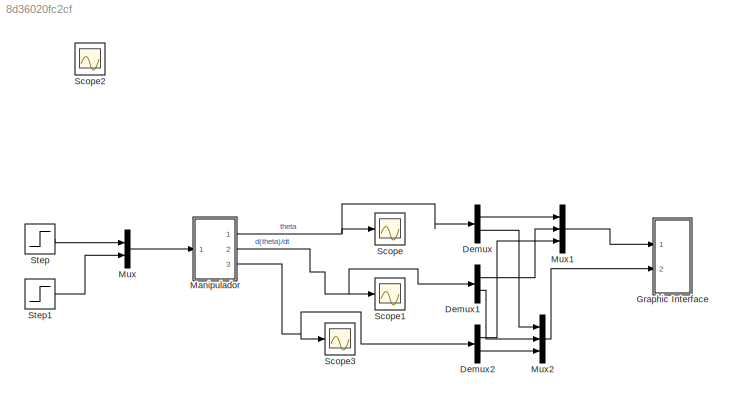
MODEL slx_8d36020fc2cf
KIND model
CONFIG AbsTol = auto
CONFIG FixedStep = 0.01
CONFIG MaxStep = 0.01
CONFIG MinStep = auto
CONFIG RelTol = 1e-3
CONFIG SampleTimeConstraint = Unconstrained
CONFIG Solver = ode4
CONFIG SolverMode = Auto
CONFIG SolverName = ode4
CONFIG StartTime = 0.0
CONFIG StopTime = 20
BLOCK [Demux] Demux
  DisplayOption = bar
  Outputs = 2
  Ports = [1, 2]
BLOCK [Demux] Demux1
  DisplayOption = bar
  Outputs = 2
  Ports = [1, 2]
BLOCK [Demux] Demux2
  DisplayOption = bar
  Outputs = 2
  Ports = [1, 2]
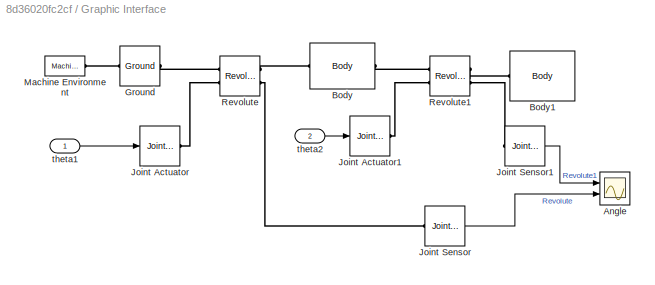
BLOCK [SubSystem] Graphic Interface
  Ports = [2]
  RequestExecContextInheritance = off
BLOCK [Scope] Graphic Interface/Angle
  DataFormat = StructureWithTime
  Floating = off
  NumInputPorts = 2
  Ports = [2]
  SampleTime = 0
  TimeRange = 10
  YMax = 0~1
  YMin = -120~-1
BLOCK [Reference] Graphic Interface/Body  REF=mblibv1/Bodies/Body
  AttachedToCS = CG
  BodyColor = [1 0 0]
  BodyColorSelMode = MACHINE_DEFAULT
  CG = Left$CG$[0.3 0 0]$WORLD$WORLD$m$[0 0 pi/4]$Euler X-Y-Z$rad$WORLD$false$none
  CGPos = [0.3 0 0]
  CGRot = [0 0 pi/4]
  CS0Pos = []
  CS0Rot = []
  CS10Pos = []
  CS10Rot = []
  CS11Pos = []
  CS11Rot = []
  CS12Pos = []
  CS12Rot = []
  CS13Pos = []
  CS13Rot = []
  CS14Pos = []
  CS14Rot = []
  CS15Pos = []
  CS15Rot = []
  CS16Pos = []
  CS16Rot = []
  CS17Pos = []
  CS17Rot = []
  CS18Pos = []
  CS18Rot = []
  CS19Pos = []
  CS19Rot = []
  CS1Pos = [0 0 0]
  CS1Rot = [0 0 0]
  CS20Pos = []
  CS20Rot = []
  CS2Pos = [0.6 0 0]
  CS2Rot = [0 0 0]
  CS3Pos = []
  CS3Rot = []
  CS4Pos = []
  CS4Rot = []
  CS5Pos = []
  CS5Rot = []
  CS6Pos = []
  CS6Rot = []
  CS7Pos = []
  CS7Rot = []
  CS8Pos = []
  CS8Rot = []
  CS9Pos = []
  CS9Rot = []
  ClassName = Body
  Density = 1
  DensityUnits = kg/m^3
  DensityUse = false
  DialogClass = MechanicalBodyBlock
  GraphicsMode = MACHINE_DEFAULT
  Inertia = [0.565529 0 0; 0 0.00085 0; 0 0 0.565529]
  InertiaUnits = kg*m^2
  LConnTagsString = CS1
  Mass = 2.2
  MassUnits = kg
  Ports = [0, 0, 0, 0, 0, 1, 1]
  RConnTagsString = CS2
  Shape = Cylinder
  ShapeDims = [1 1]
  ShapeUnits = m
  ShapeUse = false
  SourceBlock = mblibv1/Bodies/Body
  SourceType = Body
  UpdateFromCAD = off
  WorkingFrames = Left$CS1$[0 0 0]$WORLD$WORLD$m$[0 0 0]$Euler X-Y-Z$deg$WORLD$true$none#Right$CS2$[0.6 0 0]$WORLD$WORLD$m$[0 0 0]$Euler X-Y-Z$deg$WORLD$true$none
BLOCK [Reference] Graphic Interface/Body1  REF=mblibv1/Bodies/Body
  AttachedToCS = CG
  BodyColor = [1 0 0]
  BodyColorSelMode = MACHINE_DEFAULT
  CG = Left$CG$[0.9 0 0]$WORLD$WORLD$m$[0 0 pi/4]$Euler X-Y-Z$rad$WORLD$false$none
  CGPos = [0.9 0 0]
  CGRot = [0 0 pi/4]
  CS0Pos = []
  CS0Rot = []
  CS10Pos = []
  CS10Rot = []
  CS11Pos = []
  CS11Rot = []
  CS12Pos = []
  CS12Rot = []
  CS13Pos = []
  CS13Rot = []
  CS14Pos = []
  CS14Rot = []
  CS15Pos = []
  CS15Rot = []
  CS16Pos = []
  CS16Rot = []
  CS17Pos = []
  CS17Rot = []
  CS18Pos = []
  CS18Rot = []
  CS19Pos = []
  CS19Rot = []
  CS1Pos = [0.6 0 0]
  CS1Rot = [0 0 0]
  CS20Pos = []
  CS20Rot = []
  CS2Pos = [1.2 0 0]
  CS2Rot = [0 0 0]
  CS3Pos = []
  CS3Rot = []
  CS4Pos = []
  CS4Rot = []
  CS5Pos = []
  CS5Rot = []
  CS6Pos = []
  CS6Rot = []
  CS7Pos = []
  CS7Rot = []
  CS8Pos = []
  CS8Rot = []
  CS9Pos = []
  CS9Rot = []
  ClassName = Body
  Density = 1
  DensityUnits = kg/m^3
  DensityUse = false
  DialogClass = MechanicalBodyBlock
  GraphicsMode = MACHINE_DEFAULT
  Inertia = [0.565529 0 0; 0 0.00085 0; 0 0 0.565529]
  InertiaUnits = kg*m^2
  LConnTagsString = CS1
  Mass = 2.2
  MassUnits = kg
  Ports = [0, 0, 0, 0, 0, 1]
  Shape = Cylinder
  ShapeDims = [1 1]
  ShapeUnits = m
  ShapeUse = false
  SourceBlock = mblibv1/Bodies/Body
  SourceType = Body
  UpdateFromCAD = off
  WorkingFrames = Left$CS1$[0.6 0 0]$WORLD$WORLD$m$[0 0 0]$Euler X-Y-Z$deg$WORLD$true$none#Right$CS2$[1.2 0 0]$WORLD$WORLD$m$[0 0 0]$Euler X-Y-Z$deg$WORLD$false$none
BLOCK [Reference] Graphic Interface/Ground  REF=mblibv1/Bodies/Ground
  ClassName = Ground
  CoordPosition = [0 0 0]
  CoordPositionUnits = m
  DialogClass = GroundBlock
  LeftPortType = env
  MachineId = [1 0]
  ParameterChecksum = [2665323517, 9994337, 2049993874, 3484898119]
  PhysicalDomain = Mechanical
  Ports = [0, 0, 0, 0, 0, 1, 1]
  RightPortType = workingframe
  ShowEnvPort = on
  SourceBlock = mblibv1/Bodies/Ground
  SourceType = Ground
  StateVectorMgrId = 0
  TopologyChecksum = [3214554247, 653845476, 1212418715, 3884345933]
  UpdateFromCAD = off
  UserDataPersistent = on
BLOCK [Reference] Graphic Interface/Joint Actuator  REF=mblibv1/Sensors & 
Actuators/Joint Actuator
  AccelerationUnits = m/s^2
  ActiveIO = on
  ActuationStyle = Motion
  AngleUnits = rad
  ArcAccelerationUnits = rad/s^2
  ArcVelocityUnits = rad/s
  ClassName = JointActuator
  CoordPositionUnits = m
  DialogClass = MechanicalActuatorBlock
  ForceUnits = N
  PhysicalDomain = Mechanical
  PortType = blob
  Ports = [1, 0, 0, 0, 0, 0, 1]
  Primitive = R1
  ReferenceFrame = Absolute (INERTIAL)
  SourceBlock = mblibv1/Sensors & \nActuators/Joint Actuator
  SourceType = Joint Actuator
  TorqueUnits = N*m
  UpdateFromCAD = off
  VelocityUnits = m/s
  Width = 3
BLOCK [Reference] Graphic Interface/Joint Actuator1  REF=mblibv1/Sensors & 
Actuators/Joint Actuator
  AccelerationUnits = m/s^2
  ActiveIO = on
  ActuationStyle = Motion
  AngleUnits = rad
  ArcAccelerationUnits = rad/s^2
  ArcVelocityUnits = rad/s
  ClassName = JointActuator
  CoordPositionUnits = m
  DialogClass = MechanicalActuatorBlock
  ForceUnits = N
  PhysicalDomain = Mechanical
  PortType = blob
  Ports = [1, 0, 0, 0, 0, 0, 1]
  Primitive = R1
  ReferenceFrame = Absolute (INERTIAL)
  SourceBlock = mblibv1/Sensors & \nActuators/Joint Actuator
  SourceType = Joint Actuator
  TorqueUnits = N*m
  UpdateFromCAD = off
  VelocityUnits = m/s
  Width = 3
BLOCK [Reference] Graphic Interface/Joint Sensor  REF=mblibv1/Sensors & 
Actuators/Joint Sensor
  Acceleration = off
  AccelerationUnits = m/s^2
  ActiveIO = on
  Angle = on
  AngleUnits = rad
  ArcAcceleration = off
  ArcAccelerationUnits = deg/s^2
  ArcVelocity = off
  ArcVelocityUnits = deg/s
  ClassName = JointSensor
  CoordPosition = on
  CoordPositionUnits = m
  DialogClass = MechanicalSensorBlock
  Force = off
  ForceUnits = N
  Muxed = on
  OutputVector = [1]
  PhysicalDomain = Mechanical
  PortType = blob
  Ports = [0, 1, 0, 0, 0, 1]
  Pose = on
  Primitive = R1
  Quaternion = on
  QuaternionDDT = off
  QuaternionDT = off
  QuaternionUnits = off
  ReactionForce = off
  ReactionForceUnits = N
  ReactionMoment = off
  ReactionMomentUnits = N*m
  ReactionReferenceFrame = Absolute (World)
  ReactionSensedSide = Base
  ReferenceFrame = Absolute (INERTIAL)
  SourceBlock = mblibv1/Sensors & \nActuators/Joint Sensor
  SourceType = Joint Sensor
  Torque = off
  TorqueUnits = N*m
  UpdateFromCAD = off
  Velocity = off
  VelocityUnits = m/s
  Width = 1
BLOCK [Reference] Graphic Interface/Joint Sensor1  REF=mblibv1/Sensors & 
Actuators/Joint Sensor
  Acceleration = off
  AccelerationUnits = m/s^2
  ActiveIO = on
  Angle = on
  AngleUnits = rad
  ArcAcceleration = off
  ArcAccelerationUnits = deg/s^2
  ArcVelocity = off
  ArcVelocityUnits = deg/s
  ClassName = JointSensor
  CoordPosition = on
  CoordPositionUnits = m
  DialogClass = MechanicalSensorBlock
  Force = off
  ForceUnits = N
  Muxed = on
  OutputVector = [1]
  PhysicalDomain = Mechanical
  PortType = blob
  Ports = [0, 1, 0, 0, 0, 1]
  Pose = on
  Primitive = R1
  Quaternion = on
  QuaternionDDT = off
  QuaternionDT = off
  QuaternionUnits = off
  ReactionForce = off
  ReactionForceUnits = N
  ReactionMoment = off
  ReactionMomentUnits = N*m
  ReactionReferenceFrame = Absolute (World)
  ReactionSensedSide = Base
  ReferenceFrame = Absolute (INERTIAL)
  SourceBlock = mblibv1/Sensors & \nActuators/Joint Sensor
  SourceType = Joint Sensor
  Torque = off
  TorqueUnits = N*m
  UpdateFromCAD = off
  Velocity = off
  VelocityUnits = m/s
  Width = 1
BLOCK [Reference] Graphic Interface/Machine Environment  REF=mblibv1/Bodies/Machine
Environment
  AnalysisType = Forward dynamics
  AngularAssemblyTolerance = 1e-3
  AngularAssemblyToleranceUnits = rad
  BodyColorSelMode = Use model default
  BodyVisualizationType = Use model default body geometries
  ClassName = Environment
  ConstraintAbsTolerance = 1e-4
  ConstraintRelTolerance = 1e-4
  ConstraintSolverType = Stabilizing
  DefaultBodyColor = [1 0 0]
  DialogTemplateClass = MECH.MachineEnvironment
  Dimensionality = 3D Only
  Gravity = [0 -9.81 0]
  GravityAsSignal = off
  GravityUnits = m/s^2
  LinearAssemblyTolerance = 1e-3
  LinearAssemblyToleranceUnits = m
  PerturbationSize = 1e-3
  PhysicalDomain = Mechanical
  PortType = env
  Ports = [0, 0, 0, 0, 0, 0, 1]
  RedundancyAnalysisTolerance = 1e-14
  RedundancyAnalysisToleranceType = Automatically select tolerance
  SourceBlock = mblibv1/Bodies/Machine\nEnvironment
  SourceType = Machine Environment
  StatePerturbationType = Adaptive
  SyncWhenCopied = off
  Tag = Factory ground
  UseRobustSingularityHandling = off
  VisualizeMachine = on
BLOCK [Reference] Graphic Interface/Revolute  REF=mblibv1/Joints/Revolute
  ClassName = Joint
  CutJoint = off
  DialogClass = JointBlock
  LConnTagsString = __newl0|SA1
  MarkAsCut = off
  NumSAPorts = 2
  Ports = [0, 0, 0, 0, 0, 2, 2]
  PrimitiveProps = R1$World$[0 0 1]$revolute
  Primitives = revolute
  R1Axis = [0 0 1]
  RConnTagsString = __newr0|SA1
  SourceBlock = mblibv1/Joints/Revolute
  SourceType = Revolute
  UpdateFromCAD = off
BLOCK [Reference] Graphic Interface/Revolute1  REF=mblibv1/Joints/Revolute
  ClassName = Joint
  CutJoint = off
  DialogClass = JointBlock
  LConnTagsString = __newl0|SA1
  MarkAsCut = off
  NumSAPorts = 2
  Ports = [0, 0, 0, 0, 0, 2, 2]
  PrimitiveProps = R1$WORLD$[0 0 1]$revolute
  Primitives = revolute
  R1Axis = [0 0 1]
  RConnTagsString = __newr0|SA1
  SourceBlock = mblibv1/Joints/Revolute
  SourceType = Revolute
  UpdateFromCAD = off
BLOCK [Inport] Graphic Interface/theta1
  IconDisplay = Port number
BLOCK [Inport] Graphic Interface/theta2
  IconDisplay = Port number
  Port = 2
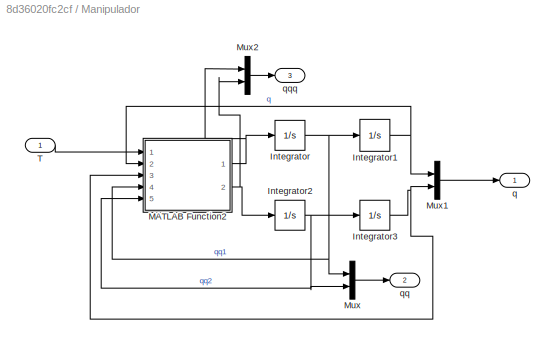
BLOCK [SubSystem] Manipulador
  Ports = [1, 3]
  RequestExecContextInheritance = off
BLOCK [Integrator] Manipulador/Integrator
  Ports = [1, 1]
BLOCK [Integrator] Manipulador/Integrator1
  Ports = [1, 1]
BLOCK [Integrator] Manipulador/Integrator2
  Ports = [1, 1]
BLOCK [Integrator] Manipulador/Integrator3
  InitialCondition = pi/3
  Ports = [1, 1]
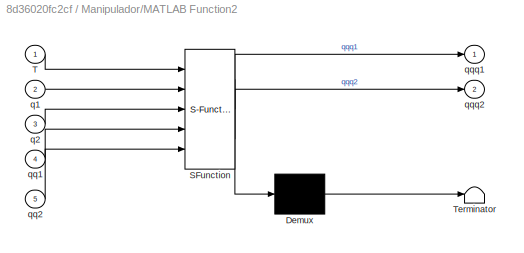
BLOCK [SubSystem] Manipulador/MATLAB Function2
  ErrorFcn = Stateflow.Translate.translate
  PermitHierarchicalResolution = ExplicitOnly
  Ports = [5, 2]
  RequestExecContextInheritance = off
  SFBlockType = MATLAB Function
  TreatAsAtomicUnit = on
BLOCK [Demux] Manipulador/MATLAB Function2/ Demux 
  Outputs = 1
  Ports = [1, 1]
BLOCK [S-Function] Manipulador/MATLAB Function2/ SFunction 
  EnableBusSupport = on
  FunctionName = sf_sfun
  PortCounts = [5 3]
  Ports = [5, 3]
  Tag = Stateflow S-Function manipulador_ma 3
BLOCK [Terminator] Manipulador/MATLAB Function2/ Terminator 
BLOCK [Inport] Manipulador/MATLAB Function2/T
  IconDisplay = Port number
BLOCK [Inport] Manipulador/MATLAB Function2/q1
  IconDisplay = Port number
  Port = 2
BLOCK [Inport] Manipulador/MATLAB Function2/q2
  IconDisplay = Port number
  Port = 3
BLOCK [Inport] Manipulador/MATLAB Function2/qq1
  IconDisplay = Port number
  Port = 4
BLOCK [Inport] Manipulador/MATLAB Function2/qq2
  IconDisplay = Port number
  Port = 5
BLOCK [Outport] Manipulador/MATLAB Function2/qqq1
  IconDisplay = Port number
BLOCK [Outport] Manipulador/MATLAB Function2/qqq2
  IconDisplay = Port number
  Port = 2
BLOCK [Mux] Manipulador/Mux
  DisplayOption = bar
  Inputs = 2
  Ports = [2, 1]
BLOCK [Mux] Manipulador/Mux1
  DisplayOption = bar
  Inputs = 2
  Ports = [2, 1]
BLOCK [Mux] Manipulador/Mux2
  DisplayOption = bar
  Inputs = 2
  Ports = [2, 1]
BLOCK [Inport] Manipulador/T
  IconDisplay = Port number
BLOCK [Outport] Manipulador/q
  IconDisplay = Port number
  PortDimensions = 2
BLOCK [Outport] Manipulador/qq
  IconDisplay = Port number
  Port = 2
BLOCK [Outport] Manipulador/qqq
  IconDisplay = Port number
  Port = 3
BLOCK [Mux] Mux
  DisplayOption = bar
  Inputs = 2
  Ports = [2, 1]
BLOCK [Mux] Mux1
  DisplayOption = bar
  Inputs = 3
  Ports = [3, 1]
BLOCK [Mux] Mux2
  DisplayOption = bar
  Inputs = 3
  Ports = [3, 1]
BLOCK [Scope] Scope
  Floating = off
  LegendLocations = 0.77053     0.78744     0.15072    0.072464
  NumInputPorts = 1
  Ports = [1]
  ShowLegends = on
BLOCK [Scope] Scope1
  Floating = off
  NumInputPorts = 1
  Ports = [1]
  SaveName = ScopeData1
  ShowLegends = on
BLOCK [Scope] Scope2
  DataFormat = StructureWithTime
  Floating = off
  IOType = viewer
  NumInputPorts = 1
  Ports = []
  SampleTime = 0
  SaveName = ScopeData2
BLOCK [Scope] Scope3
  Floating = off
  LegendLocations = 0.70794     0.80898     0.20588    0.076628
  NumInputPorts = 1
  Ports = [1]
  SaveName = ScopeData3
  ShowLegends = on
BLOCK [Step] Step
  After = 0
  SampleTime = 0
  Time = 0
BLOCK [Step] Step1
  After = 0
  SampleTime = 0
  Time = 0
LINE Demux1:1 -> Mux1:2
LINE Demux1:2 -> Mux2:2
LINE Demux2:1 -> Mux1:3
LINE Demux2:2 -> Mux2:3
LINE Demux:1 -> Mux1:1
LINE Demux:2 -> Mux2:1
LINE Graphic Interface/Joint Sensor1:1 -> Graphic Interface/Angle:1
LINE Graphic Interface/Joint Sensor:1 -> Graphic Interface/Angle:2
LINE Graphic Interface/theta1:1 -> Graphic Interface/Joint Actuator:1
LINE Graphic Interface/theta2:1 -> Graphic Interface/Joint Actuator1:1
NET Manipulador/Integrator1:1 -> Manipulador/MATLAB Function2:2, Manipulador/Mux1:1
NET Manipulador/Integrator2:1 -> Manipulador/Integrator3:1, Manipulador/MATLAB Function2:5, Manipulador/Mux:2
NET Manipulador/Integrator3:1 -> Manipulador/MATLAB Function2:3, Manipulador/Mux1:2
NET Manipulador/Integrator:1 -> Manipulador/Integrator1:1, Manipulador/MATLAB Function2:4, Manipulador/Mux:1
NET Manipulador/MATLAB Function2:1 -> Manipulador/Integrator:1, Manipulador/Mux2:1
NET Manipulador/MATLAB Function2:2 -> Manipulador/Integrator2:1, Manipulador/Mux2:2
LINE Manipulador/Mux1:1 -> Manipulador/q:1
LINE Manipulador/Mux2:1 -> Manipulador/qqq:1
LINE Manipulador/Mux:1 -> Manipulador/qq:1
LINE Manipulador/T:1 -> Manipulador/MATLAB Function2:1
NET Manipulador:1 -> Demux:1, Scope:1
NET Manipulador:2 -> Demux1:1, Scope1:1
NET Manipulador:3 -> Demux2:1, Scope3:1
LINE Mux1:1 -> Graphic Interface:1
LINE Mux2:1 -> Graphic Interface:2
LINE Mux:1 -> Manipulador:1
LINE Step1:1 -> Mux:2
LINE Step:1 -> Mux:1
PLINE Graphic Interface/Body1:LConn1 -- Graphic Interface/Revolute1:RConn1
PLINE Graphic Interface/Body:LConn1 -- Graphic Interface/Revolute:RConn1
PLINE Graphic Interface/Body:RConn1 -- Graphic Interface/Revolute1:LConn1
PLINE Graphic Interface/Ground:LConn1 -- Graphic Interface/Machine Environment:RConn1
PLINE Graphic Interface/Ground:RConn1 -- Graphic Interface/Revolute:LConn1
PLINE Graphic Interface/Joint Actuator1:RConn1 -- Graphic Interface/Revolute1:LConn2
PLINE Graphic Interface/Joint Actuator:RConn1 -- Graphic Interface/Revolute:LConn2
PLINE Graphic Interface/Joint Sensor1:LConn1 -- Graphic Interface/Revolute1:RConn2
PLINE Graphic Interface/Joint Sensor:LConn1 -- Graphic Interface/Revolute:RConn2
note: NET lines group one-source signal fan-out (src -> all destinations, sorted); 1:1 wires keep LINE
CHART Manipulador/MATLAB Function2 states=1 transitions=1
  STATE_LABEL 'eML_blk_kernel()'
  STATE_LABEL 'SCRIPT:\nfunction [qqq1, qqq2] = Manip(T, q1, q2, qq1, qq2)\nm1 = 2.2;\nm2 = 2.2;\nL1 = 0.6;\nL2 = 0.6;\ng=9.81;\nl1 = 0.3;\nl2 = 0.3;\nI1 = 0.066;\nI2 = 0.066;\nmp=3;\n\nH = zeros(2,1);\nH(1) = -L1*(m2*l2+mp*L2)*sin(q2)*(2*qq1*qq2+qq2^2)+(m1*l1+(m2+mp)*L1)*g*cos(q1)+(m2*l2+mp*L1)*g*cos(q1+q2);\nH(2) = L1*(m2*l2+mp*L2)*sin(q2)*qq1^2+(m2*l2+mp*L1)*g*cos(q1+q2);\n\nM = zeros(2,2);\nM(1,1) = I1+I2+m1*l1^2+(m2+mp)*L1^2...<+231ch>'
